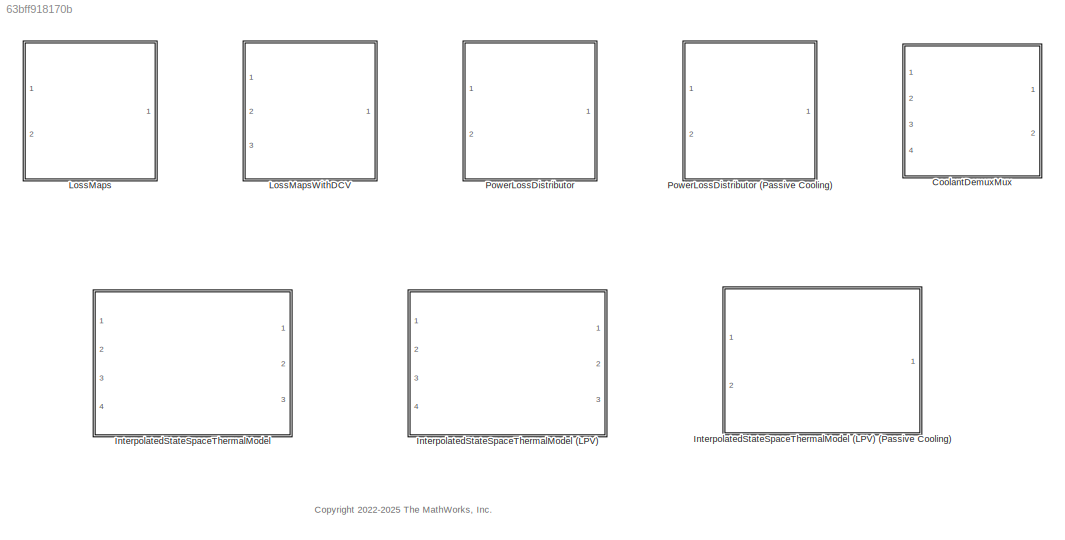
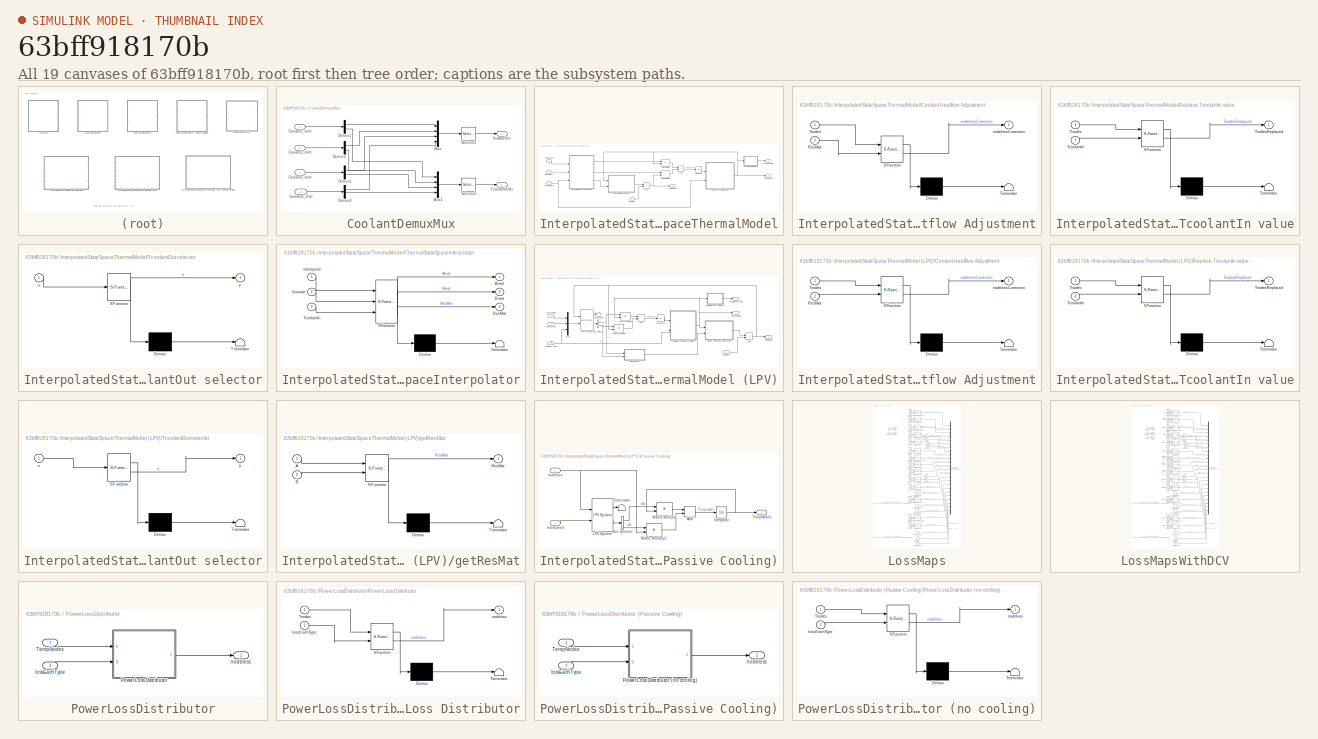
[diagram: thumbnail index - all 19 canvases of the model, root first then tree order]
MODEL slx_63bff918170b
KIND library
CONFIG AbsTol = auto
CONFIG EnableMultiTasking = off
CONFIG FixedStep = auto
CONFIG MaxStep = auto
CONFIG MinStep = auto
CONFIG RelTol = 1e-3
CONFIG SampleTimeConstraint = Unconstrained
CONFIG SolverName = VariableStepAuto
CONFIG StartTime = 0.0
CONFIG StopTime = 10.0
BLOCK [SubSystem] CoolantDemuxMux
  Ports = [4, 2]
  RequestExecContextInheritance = off
BLOCK [Inport] CoolantDemuxMux/Coolant1_Inlet
BLOCK [Inport] CoolantDemuxMux/Coolant2_Inlet
  Port = 2
BLOCK [Inport] CoolantDemuxMux/Coolant3_Inlet
  Port = 3
BLOCK [Inport] CoolantDemuxMux/Coolant4_Inlet
  Port = 4
BLOCK [Demux] CoolantDemuxMux/Demux1
  Outputs = 2
  Ports = [1, 2]
BLOCK [Demux] CoolantDemuxMux/Demux2
  Outputs = 2
  Ports = [1, 2]
BLOCK [Demux] CoolantDemuxMux/Demux3
  Outputs = 2
  Ports = [1, 2]
BLOCK [Demux] CoolantDemuxMux/Demux4
  Outputs = 2
  Ports = [1, 2]
BLOCK [Mux] CoolantDemuxMux/Mux
  DisplayOption = bar
  Ports = [4, 1]
BLOCK [Mux] CoolantDemuxMux/Mux1
  DisplayOption = bar
  Ports = [4, 1]
BLOCK [Selector] CoolantDemuxMux/Selector1
  IndexOptions = Index vector (dialog)
  Indices = [1,2,3,4]
  InputPortWidth = 4
  OutputSizes = 1
  Ports = [1, 1]
BLOCK [Selector] CoolantDemuxMux/Selector2
  IndexOptions = Index vector (dialog)
  Indices = [1,2,3,4]
  InputPortWidth = 4
  OutputSizes = 1
  Ports = [1, 1]
BLOCK [Outport] CoolantDemuxMux/TcoolantInVec
  Port = 2
BLOCK [Outport] CoolantDemuxMux/flowrateVec
BLOCK [SubSystem] InterpolatedStateSpaceThermalModel
  Ports = [4, 3]
  RequestExecContextInheritance = off
BLOCK [SubSystem] InterpolatedStateSpaceThermalModel (LPV)
  Ports = [4, 3]
  RequestExecContextInheritance = off
BLOCK [SubSystem] InterpolatedStateSpaceThermalModel (LPV) (Passive Cooling)
  Ports = [2, 1]
  RequestExecContextInheritance = off
BLOCK [Sum] InterpolatedStateSpaceThermalModel (LPV) (Passive Cooling)/Add
  IconShape = rectangular
  Ports = [2, 1]
BLOCK [BusSelector] InterpolatedStateSpaceThermalModel (LPV) (Passive Cooling)/Bus Selector
  OutputSignals = A,B
  Ports = [1, 2]
BLOCK [Integrator] InterpolatedStateSpaceThermalModel (LPV) (Passive Cooling)/Integrator
  InitialCondition = TnodesInit
  Ports = [1, 1]
BLOCK [Reference] InterpolatedStateSpaceThermalModel (LPV) (Passive Cooling)/LPV System  REF=cstblocks/Linear Parameter Varying/LPV System
  Ports = [2, 2]
  SourceBlock = cstblocks/Linear Parameter Varying/LPV System
  SourceProductBaseCode = CT
  SourceType = LPV Block
BLOCK [Product] InterpolatedStateSpaceThermalModel (LPV) (Passive Cooling)/Matrix Multiply
  Multiplication = Matrix(*)
  Ports = [2, 1]
BLOCK [Product] InterpolatedStateSpaceThermalModel (LPV) (Passive Cooling)/Matrix Multiply1
  Multiplication = Matrix(*)
  Ports = [2, 1]
BLOCK [Outport] InterpolatedStateSpaceThermalModel (LPV) (Passive Cooling)/TempNodes
BLOCK [Terminator] InterpolatedStateSpaceThermalModel (LPV) (Passive Cooling)/Terminator
BLOCK [Inport] InterpolatedStateSpaceThermalModel (LPV) (Passive Cooling)/nodeloss
BLOCK [Inport] InterpolatedStateSpaceThermalModel (LPV) (Passive Cooling)/rotorspeed
  Port = 2
BLOCK [Sum] InterpolatedStateSpaceThermalModel (LPV)/Add
  IconShape = rectangular
  Ports = [2, 1]
BLOCK [Sum] InterpolatedStateSpaceThermalModel (LPV)/Add1
  IconShape = rectangular
  Ports = [2, 1]
BLOCK [BusSelector] InterpolatedStateSpaceThermalModel (LPV)/Bus Selector
  OutputSignals = A,B
  Ports = [1, 2]
BLOCK [SubSystem] InterpolatedStateSpaceThermalModel (LPV)/Coolant Heatflow Adjustment
  ErrorFcn = Stateflow.Translate.translate
  PermitHierarchicalResolution = ExplicitOnly
  Ports = [2, 1]
  RequestExecContextInheritance = off
  SFBlockType = MATLAB Function
  TreatAsAtomicUnit = on
BLOCK [Demux] InterpolatedStateSpaceThermalModel (LPV)/Coolant Heatflow Adjustment/ Demux 
  Outputs = 1
  Ports = [1, 1]
BLOCK [S-Function] InterpolatedStateSpaceThermalModel (LPV)/Coolant Heatflow Adjustment/ SFunction 
  EnableBusSupport = off
  FunctionName = sf_sfun
  Parameters = CoolAdjMat,CoolantArrayIdxs,numStates
  PortCounts = [2 2]
  Ports = [2, 2]
  SFcnIsStateOwnerBlock = off
  SFunctionDeploymentMode = off
  Tag = Stateflow S-Function 5
BLOCK [Terminator] InterpolatedStateSpaceThermalModel (LPV)/Coolant Heatflow Adjustment/ Terminator 
BLOCK [Inport] InterpolatedStateSpaceThermalModel (LPV)/Coolant Heatflow Adjustment/ResMat
  Port = 2
BLOCK [Inport] InterpolatedStateSpaceThermalModel (LPV)/Coolant Heatflow Adjustment/Tnodes
BLOCK [Outport] InterpolatedStateSpaceThermalModel (LPV)/Coolant Heatflow Adjustment/nodelossCorrection
BLOCK [Integrator] InterpolatedStateSpaceThermalModel (LPV)/Integrator
  InitialCondition = TnodesInit
  Ports = [1, 1]
BLOCK [Reference] InterpolatedStateSpaceThermalModel (LPV)/LPV System  REF=cstblocks/Linear Parameter Varying/LPV System
  Ports = [2, 2]
  SourceBlock = cstblocks/Linear Parameter Varying/LPV System
  SourceProductBaseCode = CT
  SourceType = LPV Block
BLOCK [Product] InterpolatedStateSpaceThermalModel (LPV)/Matrix Multiply
  Multiplication = Matrix(*)
  Ports = [2, 1]
BLOCK [Product] InterpolatedStateSpaceThermalModel (LPV)/Matrix Multiply1
  Multiplication = Matrix(*)
  Ports = [2, 1]
BLOCK [Mux] InterpolatedStateSpaceThermalModel (LPV)/Mux
  DisplayOption = bar
  Inputs = 3
  Ports = [3, 1]
BLOCK [Outport] InterpolatedStateSpaceThermalModel (LPV)/PowNodes
  Port = 2
BLOCK [SubSystem] InterpolatedStateSpaceThermalModel (LPV)/Replace TcoolantIn value
  ErrorFcn = Stateflow.Translate.translate
  PermitHierarchicalResolution = ExplicitOnly
  Ports = [2, 1]
  RequestExecContextInheritance = off
  SFBlockType = MATLAB Function
  TreatAsAtomicUnit = on
BLOCK [Demux] InterpolatedStateSpaceThermalModel (LPV)/Replace TcoolantIn value/ Demux 
  Outputs = 1
  Ports = [1, 1]
BLOCK [S-Function] InterpolatedStateSpaceThermalModel (LPV)/Replace TcoolantIn value/ SFunction 
  EnableBusSupport = off
  FunctionName = sf_sfun
  Parameters = InletCoolantIdxs
  PortCounts = [2 2]
  Ports = [2, 2]
  SFcnIsStateOwnerBlock = off
  SFunctionDeploymentMode = off
  Tag = Stateflow S-Function 7
BLOCK [Terminator] InterpolatedStateSpaceThermalModel (LPV)/Replace TcoolantIn value/ Terminator 
BLOCK [Inport] InterpolatedStateSpaceThermalModel (LPV)/Replace TcoolantIn value/TcoolantIn
  Port = 2
BLOCK [Inport] InterpolatedStateSpaceThermalModel (LPV)/Replace TcoolantIn value/Tnodes
BLOCK [Outport] InterpolatedStateSpaceThermalModel (LPV)/Replace TcoolantIn value/TnodesReplaced
BLOCK [Inport] InterpolatedStateSpaceThermalModel (LPV)/TcoolantInVec
  Port = 4
BLOCK [SubSystem] InterpolatedStateSpaceThermalModel (LPV)/TcoolantOut selector
  ErrorFcn = Stateflow.Translate.translate
  PermitHierarchicalResolution = ExplicitOnly
  Ports = [1, 1]
  RequestExecContextInheritance = off
  SFBlockType = MATLAB Function
  TreatAsAtomicUnit = on
BLOCK [Demux] InterpolatedStateSpaceThermalModel (LPV)/TcoolantOut selector/ Demux 
  Outputs = 1
  Ports = [1, 1]
BLOCK [S-Function] InterpolatedStateSpaceThermalModel (LPV)/TcoolantOut selector/ SFunction 
  EnableBusSupport = off
  FunctionName = sf_sfun
  Parameters = OutletCoolantIdxs
  PortCounts = [1 2]
  Ports = [1, 2]
  SFcnIsStateOwnerBlock = off
  SFunctionDeploymentMode = off
  Tag = Stateflow S-Function 8
BLOCK [Terminator] InterpolatedStateSpaceThermalModel (LPV)/TcoolantOut selector/ Terminator 
BLOCK [Inport] InterpolatedStateSpaceThermalModel (LPV)/TcoolantOut selector/u
BLOCK [Outport] InterpolatedStateSpaceThermalModel (LPV)/TcoolantOut selector/y
BLOCK [Outport] InterpolatedStateSpaceThermalModel (LPV)/TcoolantOutVec
  Port = 3
BLOCK [Outport] InterpolatedStateSpaceThermalModel (LPV)/TempNodes
BLOCK [Terminator] InterpolatedStateSpaceThermalModel (LPV)/Terminator
BLOCK [Inport] InterpolatedStateSpaceThermalModel (LPV)/flowrateVec
  Port = 3
BLOCK [SubSystem] InterpolatedStateSpaceThermalModel (LPV)/getResMat
  ErrorFcn = Stateflow.Translate.translate
  PermitHierarchicalResolution = ExplicitOnly
  Ports = [2, 1]
  RequestExecContextInheritance = off
  SFBlockType = MATLAB Function
  TreatAsAtomicUnit = on
BLOCK [Demux] InterpolatedStateSpaceThermalModel (LPV)/getResMat/ Demux 
  Outputs = 1
  Ports = [1, 1]
BLOCK [S-Function] InterpolatedStateSpaceThermalModel (LPV)/getResMat/ SFunction 
  EnableBusSupport = off
  FunctionName = sf_sfun
  PortCounts = [2 2]
  Ports = [2, 2]
  SFcnIsStateOwnerBlock = off
  SFunctionDeploymentMode = off
  Tag = Stateflow S-Function 9
BLOCK [Terminator] InterpolatedStateSpaceThermalModel (LPV)/getResMat/ Terminator 
BLOCK [Inport] InterpolatedStateSpaceThermalModel (LPV)/getResMat/A
BLOCK [Inport] InterpolatedStateSpaceThermalModel (LPV)/getResMat/B
  Port = 2
BLOCK [Outport] InterpolatedStateSpaceThermalModel (LPV)/getResMat/ResMat
BLOCK [Inport] InterpolatedStateSpaceThermalModel (LPV)/nodeloss
BLOCK [Inport] InterpolatedStateSpaceThermalModel (LPV)/rotorspeed
  Port = 2
BLOCK [Sum] InterpolatedStateSpaceThermalModel/Add
  IconShape = rectangular
  Ports = [2, 1]
BLOCK [Sum] InterpolatedStateSpaceThermalModel/Add1
  IconShape = rectangular
  Ports = [2, 1]
BLOCK [SubSystem] InterpolatedStateSpaceThermalModel/Coolant Heatflow Adjustment
  ErrorFcn = Stateflow.Translate.translate
  PermitHierarchicalResolution = ExplicitOnly
  Ports = [2, 1]
  RequestExecContextInheritance = off
  SFBlockType = MATLAB Function
  TreatAsAtomicUnit = on
BLOCK [Demux] InterpolatedStateSpaceThermalModel/Coolant Heatflow Adjustment/ Demux 
  Outputs = 1
  Ports = [1, 1]
BLOCK [S-Function] InterpolatedStateSpaceThermalModel/Coolant Heatflow Adjustment/ SFunction 
  EnableBusSupport = on
  FunctionName = sf_sfun
  Parameters = CoolAdjMat,CoolantArrayIdxs,numStates
  PortCounts = [2 2]
  Ports = [2, 2]
  SFcnIsStateOwnerBlock = off
  SFunctionDeploymentMode = off
  Tag = Stateflow S-Function 1
BLOCK [Terminator] InterpolatedStateSpaceThermalModel/Coolant Heatflow Adjustment/ Terminator 
BLOCK [Inport] InterpolatedStateSpaceThermalModel/Coolant Heatflow Adjustment/ResMat
  Port = 2
BLOCK [Inport] InterpolatedStateSpaceThermalModel/Coolant Heatflow Adjustment/Tnodes
BLOCK [Outport] InterpolatedStateSpaceThermalModel/Coolant Heatflow Adjustment/nodelossCorrection
BLOCK [Integrator] InterpolatedStateSpaceThermalModel/Integrator
  InitialCondition = TnodesInit
  Ports = [1, 1]
BLOCK [Product] InterpolatedStateSpaceThermalModel/Matrix Multiply
  Multiplication = Matrix(*)
  Ports = [2, 1]
BLOCK [Product] InterpolatedStateSpaceThermalModel/Matrix Multiply1
  Multiplication = Matrix(*)
  Ports = [2, 1]
BLOCK [Outport] InterpolatedStateSpaceThermalModel/PowNodes
  Port = 2
BLOCK [SubSystem] InterpolatedStateSpaceThermalModel/Replace TcoolantIn value
  ErrorFcn = Stateflow.Translate.translate
  PermitHierarchicalResolution = ExplicitOnly
  Ports = [2, 1]
  RequestExecContextInheritance = off
  SFBlockType = MATLAB Function
  TreatAsAtomicUnit = on
BLOCK [Demux] InterpolatedStateSpaceThermalModel/Replace TcoolantIn value/ Demux 
  Outputs = 1
  Ports = [1, 1]
BLOCK [S-Function] InterpolatedStateSpaceThermalModel/Replace TcoolantIn value/ SFunction 
  EnableBusSupport = on
  FunctionName = sf_sfun
  Parameters = InletCoolantIdxs
  PortCounts = [2 2]
  Ports = [2, 2]
  SFcnIsStateOwnerBlock = off
  SFunctionDeploymentMode = off
  Tag = Stateflow S-Function 2
BLOCK [Terminator] InterpolatedStateSpaceThermalModel/Replace TcoolantIn value/ Terminator 
BLOCK [Inport] InterpolatedStateSpaceThermalModel/Replace TcoolantIn value/TcoolantIn
  Port = 2
BLOCK [Inport] InterpolatedStateSpaceThermalModel/Replace TcoolantIn value/Tnodes
BLOCK [Outport] InterpolatedStateSpaceThermalModel/Replace TcoolantIn value/TnodesReplaced
BLOCK [Inport] InterpolatedStateSpaceThermalModel/TcoolantInVec
  Port = 4
BLOCK [SubSystem] InterpolatedStateSpaceThermalModel/TcoolantOut selector
  ErrorFcn = Stateflow.Translate.translate
  PermitHierarchicalResolution = ExplicitOnly
  Ports = [1, 1]
  RequestExecContextInheritance = off
  SFBlockType = MATLAB Function
  TreatAsAtomicUnit = on
BLOCK [Demux] InterpolatedStateSpaceThermalModel/TcoolantOut selector/ Demux 
  Outputs = 1
  Ports = [1, 1]
BLOCK [S-Function] InterpolatedStateSpaceThermalModel/TcoolantOut selector/ SFunction 
  EnableBusSupport = on
  FunctionName = sf_sfun
  Parameters = OutletCoolantIdxs
  PortCounts = [1 2]
  Ports = [1, 2]
  SFcnIsStateOwnerBlock = off
  SFunctionDeploymentMode = off
  Tag = Stateflow S-Function 4
BLOCK [Terminator] InterpolatedStateSpaceThermalModel/TcoolantOut selector/ Terminator 
BLOCK [Inport] InterpolatedStateSpaceThermalModel/TcoolantOut selector/u
BLOCK [Outport] InterpolatedStateSpaceThermalModel/TcoolantOut selector/y
BLOCK [Outport] InterpolatedStateSpaceThermalModel/TcoolantOutVec
  Port = 3
BLOCK [Outport] InterpolatedStateSpaceThermalModel/TempNodes
BLOCK [SubSystem] InterpolatedStateSpaceThermalModel/ThermalStateSpaceInterpolator
  ErrorFcn = Stateflow.Translate.translate
  PermitHierarchicalResolution = ExplicitOnly
  Ports = [3, 3]
  RequestExecContextInheritance = off
  SFBlockType = MATLAB Function
  TreatAsAtomicUnit = on
BLOCK [Demux] InterpolatedStateSpaceThermalModel/ThermalStateSpaceInterpolator/ Demux 
  Outputs = 1
  Ports = [1, 1]
BLOCK [S-Function] InterpolatedStateSpaceThermalModel/ThermalStateSpaceInterpolator/ SFunction 
  EnableBusSupport = off
  FunctionName = sf_sfun
  Parameters = AMatND,BMatND,BkptsStruct,ResMatND,numStates
  PortCounts = [3 4]
  Ports = [3, 4]
  SFcnIsStateOwnerBlock = off
  SFunctionDeploymentMode = off
  Tag = Stateflow S-Function 3
BLOCK [Terminator] InterpolatedStateSpaceThermalModel/ThermalStateSpaceInterpolator/ Terminator 
BLOCK [Outport] InterpolatedStateSpaceThermalModel/ThermalStateSpaceInterpolator/Amat
BLOCK [Outport] InterpolatedStateSpaceThermalModel/ThermalStateSpaceInterpolator/Bmat
  Port = 2
BLOCK [Outport] InterpolatedStateSpaceThermalModel/ThermalStateSpaceInterpolator/ResMat
  Port = 3
BLOCK [Inport] InterpolatedStateSpaceThermalModel/ThermalStateSpaceInterpolator/TcoolantIn
  Port = 3
BLOCK [Inport] InterpolatedStateSpaceThermalModel/ThermalStateSpaceInterpolator/flowrate
  Port = 2
BLOCK [Inport] InterpolatedStateSpaceThermalModel/ThermalStateSpaceInterpolator/rotorspeed
BLOCK [Inport] InterpolatedStateSpaceThermalModel/flowrateVec
  Port = 3
BLOCK [Inport] InterpolatedStateSpaceThermalModel/nodeloss
BLOCK [Inport] InterpolatedStateSpaceThermalModel/rotorspeed
  Port = 2
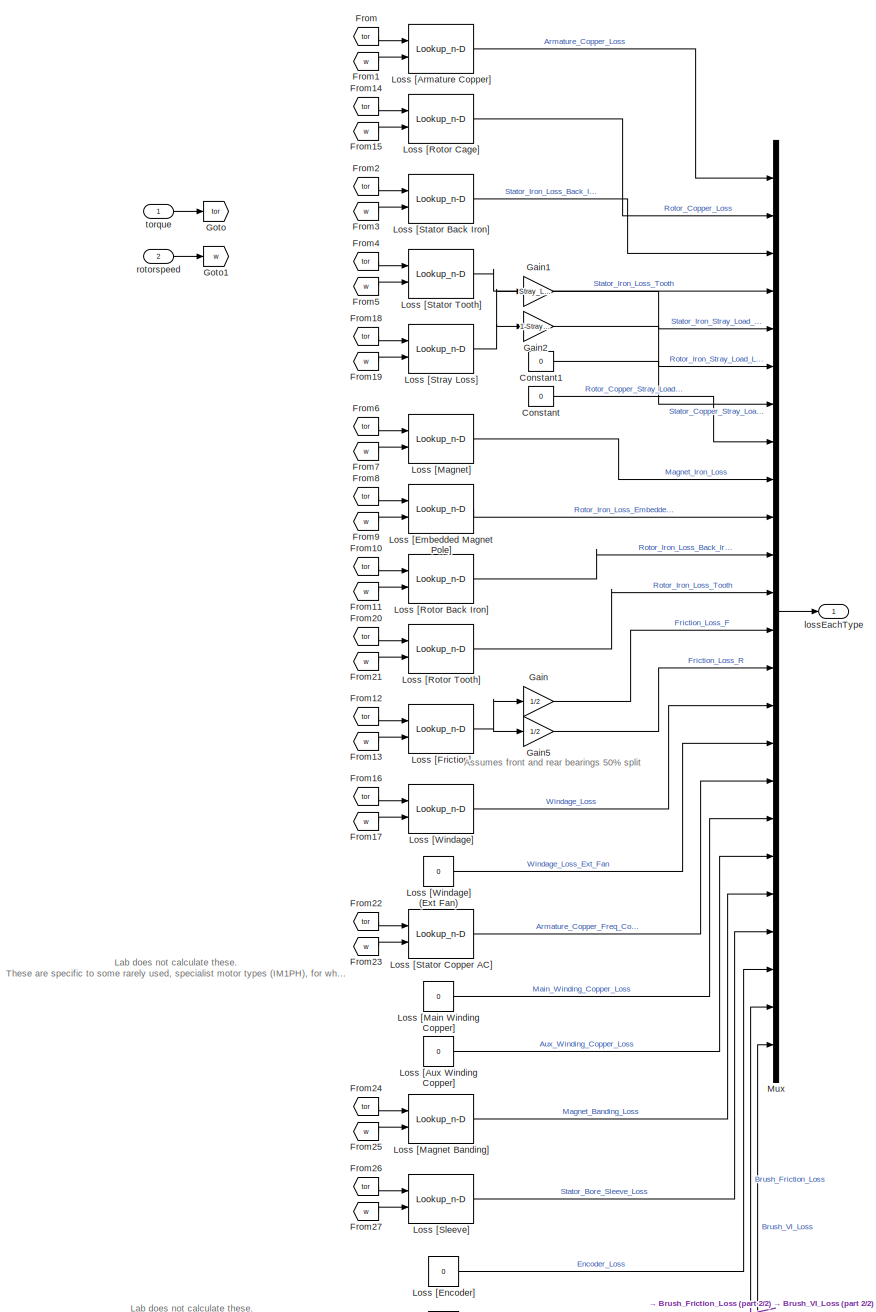
[diagram: LossMaps - part 1/2, most of the canvas]
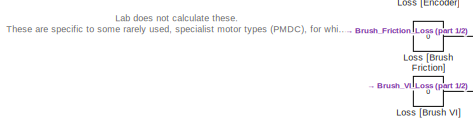
[diagram: LossMaps - part 2/2, bottom left region]
BLOCK [SubSystem] LossMaps
  Ports = [2, 1]
  RequestExecContextInheritance = off
BLOCK [Constant] LossMaps/Constant
  Value = 0
BLOCK [Constant] LossMaps/Constant1
  Value = 0
BLOCK [From] LossMaps/From
  GotoTag = tor
BLOCK [From] LossMaps/From1
  GotoTag = w
BLOCK [From] LossMaps/From10
  GotoTag = tor
BLOCK [From] LossMaps/From11
  GotoTag = w
BLOCK [From] LossMaps/From12
  GotoTag = tor
BLOCK [From] LossMaps/From13
  GotoTag = w
BLOCK [From] LossMaps/From14
  GotoTag = tor
BLOCK [From] LossMaps/From15
  GotoTag = w
BLOCK [From] LossMaps/From16
  GotoTag = tor
BLOCK [From] LossMaps/From17
  GotoTag = w
BLOCK [From] LossMaps/From18
  GotoTag = tor
BLOCK [From] LossMaps/From19
  GotoTag = w
BLOCK [From] LossMaps/From2
  GotoTag = tor
BLOCK [From] LossMaps/From20
  GotoTag = tor
BLOCK [From] LossMaps/From21
  GotoTag = w
BLOCK [From] LossMaps/From22
  GotoTag = tor
BLOCK [From] LossMaps/From23
  GotoTag = w
BLOCK [From] LossMaps/From24
  GotoTag = tor
BLOCK [From] LossMaps/From25
  GotoTag = w
BLOCK [From] LossMaps/From26
  GotoTag = tor
BLOCK [From] LossMaps/From27
  GotoTag = w
BLOCK [From] LossMaps/From3
  GotoTag = w
BLOCK [From] LossMaps/From4
  GotoTag = tor
BLOCK [From] LossMaps/From5
  GotoTag = w
BLOCK [From] LossMaps/From6
  GotoTag = tor
BLOCK [From] LossMaps/From7
  GotoTag = w
BLOCK [From] LossMaps/From8
  GotoTag = tor
BLOCK [From] LossMaps/From9
  GotoTag = w
BLOCK [Gain] LossMaps/Gain
  Gain = 1/2
BLOCK [Gain] LossMaps/Gain1
  Gain = Stray_Loss_Stator_Iron_Proportion
BLOCK [Gain] LossMaps/Gain2
  Gain = 1-Stray_Loss_Stator_Iron_Proportion
BLOCK [Gain] LossMaps/Gain5
  Gain = 1/2
BLOCK [Goto] LossMaps/Goto
  GotoTag = tor
BLOCK [Goto] LossMaps/Goto1
  GotoTag = w
BLOCK [Lookup_n-D] LossMaps/Loss [Armature Copper]
  BreakpointsForDimension1 = ShaftTorqueVec
  BreakpointsForDimension2 = SpeedVec
  ExtrapMethod = Clip
  InputPortMap = u0,u1
  InternalRulePriority = Speed
  Ports = [2, 1]
  RndMeth = Simplest
  Table = Stator_Copper_Loss_Mat
  UseLastTableValue = on
BLOCK [Constant] LossMaps/Loss [Aux Winding Copper]
  Value = 0
BLOCK [Constant] LossMaps/Loss [Brush Friction]
  Value = 0
BLOCK [Constant] LossMaps/Loss [Brush VI]
  Value = 0
BLOCK [Lookup_n-D] LossMaps/Loss [Embedded Magnet Pole]
  BreakpointsForDimension1 = ShaftTorqueVec
  BreakpointsForDimension2 = SpeedVec
  ExtrapMethod = Clip
  InputPortMap = u0,u1
  InternalRulePriority = Speed
  Ports = [2, 1]
  RndMeth = Simplest
  Table = Iron_Loss_Rotor_Pole_Mat
  UseLastTableValue = on
BLOCK [Constant] LossMaps/Loss [Encoder]
  Value = 0
BLOCK [Lookup_n-D] LossMaps/Loss [Friction]
  BreakpointsForDimension1 = ShaftTorqueVec
  BreakpointsForDimension2 = SpeedVec
  ExtrapMethod = Clip
  InputPortMap = u0,u1
  InternalRulePriority = Speed
  Ports = [2, 1]
  RndMeth = Simplest
  Table = Friction_Loss_Mat
  UseLastTableValue = on
BLOCK [Lookup_n-D] LossMaps/Loss [Magnet Banding]
  BreakpointsForDimension1 = ShaftTorqueVec
  BreakpointsForDimension2 = SpeedVec
  ExtrapMethod = Clip
  InputPortMap = u0,u1
  InternalRulePriority = Speed
  Ports = [2, 1]
  RndMeth = Simplest
  Table = Banding_Loss_Mat
  UseLastTableValue = on
BLOCK [Lookup_n-D] LossMaps/Loss [Magnet]
  BreakpointsForDimension1 = ShaftTorqueVec
  BreakpointsForDimension2 = SpeedVec
  ExtrapMethod = Clip
  InputPortMap = u0,u1
  InternalRulePriority = Speed
  Ports = [2, 1]
  RndMeth = Simplest
  Table = Magnet_Loss_Mat
  UseLastTableValue = on
BLOCK [Constant] LossMaps/Loss [Main Winding Copper]
  Value = 0
BLOCK [Lookup_n-D] LossMaps/Loss [Rotor Back Iron]
  BreakpointsForDimension1 = ShaftTorqueVec
  BreakpointsForDimension2 = SpeedVec
  ExtrapMethod = Clip
  InputPortMap = u0,u1
  InternalRulePriority = Speed
  Ports = [2, 1]
  RndMeth = Simplest
  Table = Iron_Loss_Rotor_Back_Iron_Mat
  UseLastTableValue = on
BLOCK [Lookup_n-D] LossMaps/Loss [Rotor Cage]
  BreakpointsForDimension1 = ShaftTorqueVec
  BreakpointsForDimension2 = SpeedVec
  ExtrapMethod = Clip
  InputPortMap = u0,u1
  InternalRulePriority = Speed
  Ports = [2, 1]
  RndMeth = Simplest
  Table = Rotor_Cage_Loss_Mat
  UseLastTableValue = on
BLOCK [Lookup_n-D] LossMaps/Loss [Rotor Tooth]
  BreakpointsForDimension1 = ShaftTorqueVec
  BreakpointsForDimension2 = SpeedVec
  ExtrapMethod = Clip
  InputPortMap = u0,u1
  InternalRulePriority = Speed
  Ports = [2, 1]
  RndMeth = Simplest
  Table = Iron_Loss_Rotor_Tooth_Mat
  UseLastTableValue = on
BLOCK [Lookup_n-D] LossMaps/Loss [Sleeve]
  BreakpointsForDimension1 = ShaftTorqueVec
  BreakpointsForDimension2 = SpeedVec
  ExtrapMethod = Clip
  InputPortMap = u0,u1
  InternalRulePriority = Speed
  Ports = [2, 1]
  RndMeth = Simplest
  Table = Sleeve_Loss_Mat
  UseLastTableValue = on
BLOCK [Lookup_n-D] LossMaps/Loss [Stator Back Iron]
  BreakpointsForDimension1 = ShaftTorqueVec
  BreakpointsForDimension2 = SpeedVec
  ExtrapMethod = Clip
  InputPortMap = u0,u1
  InternalRulePriority = Speed
  Ports = [2, 1]
  RndMeth = Simplest
  Table = Iron_Loss_Stator_Back_Iron_Mat
  UseLastTableValue = on
BLOCK [Lookup_n-D] LossMaps/Loss [Stator Copper AC]
  BreakpointsForDimension1 = ShaftTorqueVec
  BreakpointsForDimension2 = SpeedVec
  ExtrapMethod = Clip
  InputPortMap = u0,u1
  InternalRulePriority = Speed
  Ports = [2, 1]
  RndMeth = Simplest
  Table = Stator_Copper_Loss_AC_Mat
  UseLastTableValue = on
BLOCK [Lookup_n-D] LossMaps/Loss [Stator Tooth]
  BreakpointsForDimension1 = ShaftTorqueVec
  BreakpointsForDimension2 = SpeedVec
  ExtrapMethod = Clip
  InputPortMap = u0,u1
  InternalRulePriority = Speed
  Ports = [2, 1]
  RndMeth = Simplest
  Table = Iron_Loss_Stator_Tooth_Mat
  UseLastTableValue = on
BLOCK [Lookup_n-D] LossMaps/Loss [Stray Loss]
  BreakpointsForDimension1 = ShaftTorqueVec
  BreakpointsForDimension2 = SpeedVec
  ExtrapMethod = Clip
  InputPortMap = u0,u1
  InternalRulePriority = Speed
  Ports = [2, 1]
  RndMeth = Simplest
  Table = Stray_Load_Loss_Mat
  UseLastTableValue = on
BLOCK [Lookup_n-D] LossMaps/Loss [Windage]
  BreakpointsForDimension1 = ShaftTorqueVec
  BreakpointsForDimension2 = SpeedVec
  ExtrapMethod = Clip
  InputPortMap = u0,u1
  InternalRulePriority = Speed
  Ports = [2, 1]
  RndMeth = Simplest
  Table = Windage_Loss_Mat
  UseLastTableValue = on
BLOCK [Constant] LossMaps/Loss [Windage] (Ext Fan)
  Value = 0
BLOCK [Mux] LossMaps/Mux
  DisplayOption = bar
  Inputs = 24
  Ports = [24, 1]
BLOCK [Outport] LossMaps/lossEachType
BLOCK [Inport] LossMaps/rotorspeed
  Port = 2
BLOCK [Inport] LossMaps/torque
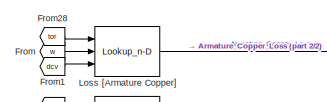
[diagram: LossMapsWithDCV - part 1/2, top center region]
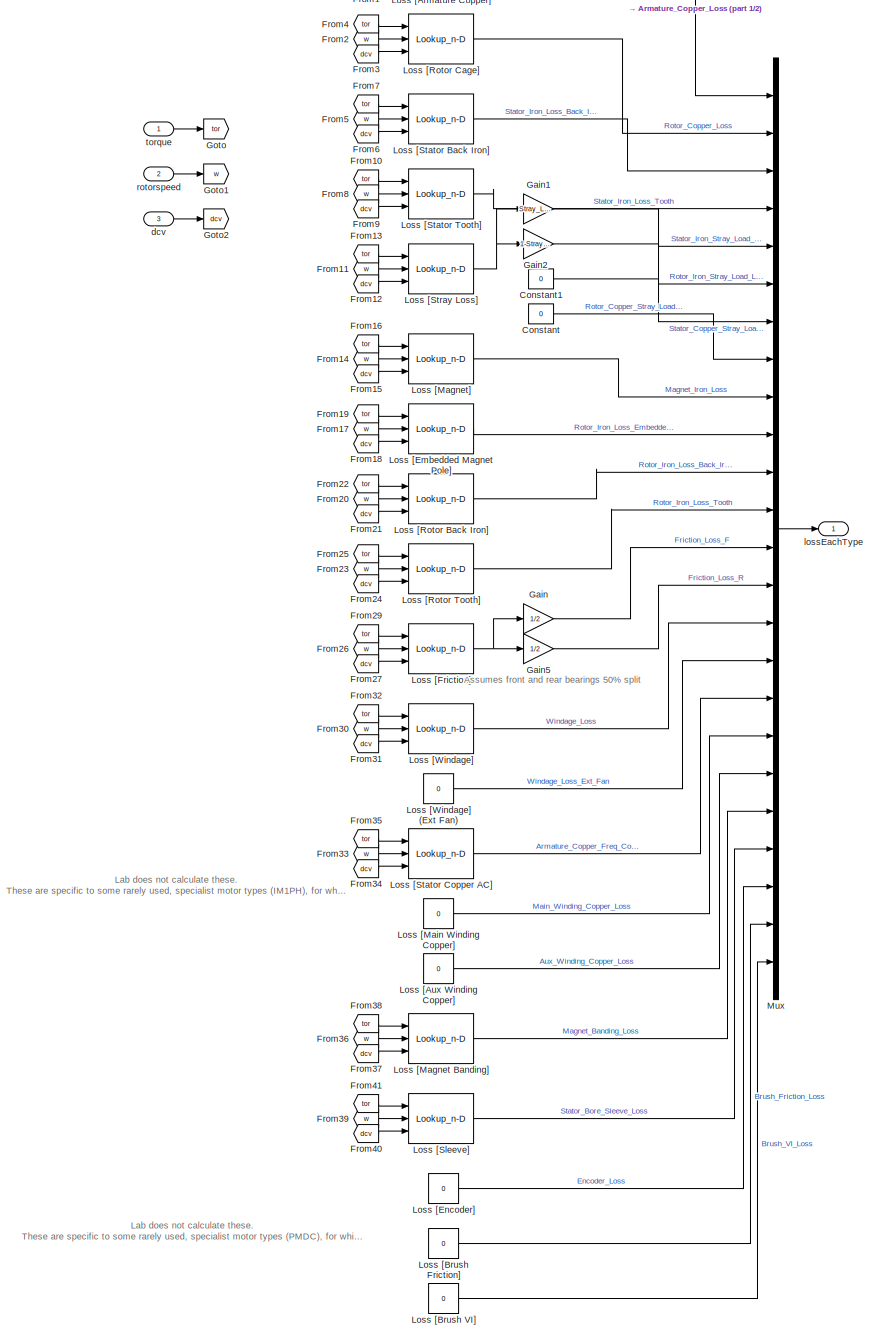
[diagram: LossMapsWithDCV - part 2/2, most of the canvas]
BLOCK [SubSystem] LossMapsWithDCV
  Ports = [3, 1]
  RequestExecContextInheritance = off
BLOCK [Constant] LossMapsWithDCV/Constant
  Value = 0
BLOCK [Constant] LossMapsWithDCV/Constant1
  Value = 0
BLOCK [From] LossMapsWithDCV/From
  GotoTag = w
BLOCK [From] LossMapsWithDCV/From1
  GotoTag = dcv
BLOCK [From] LossMapsWithDCV/From10
  GotoTag = tor
BLOCK [From] LossMapsWithDCV/From11
  GotoTag = w
BLOCK [From] LossMapsWithDCV/From12
  GotoTag = dcv
BLOCK [From] LossMapsWithDCV/From13
  GotoTag = tor
BLOCK [From] LossMapsWithDCV/From14
  GotoTag = w
BLOCK [From] LossMapsWithDCV/From15
  GotoTag = dcv
BLOCK [From] LossMapsWithDCV/From16
  GotoTag = tor
BLOCK [From] LossMapsWithDCV/From17
  GotoTag = w
BLOCK [From] LossMapsWithDCV/From18
  GotoTag = dcv
BLOCK [From] LossMapsWithDCV/From19
  GotoTag = tor
BLOCK [From] LossMapsWithDCV/From2
  GotoTag = w
BLOCK [From] LossMapsWithDCV/From20
  GotoTag = w
BLOCK [From] LossMapsWithDCV/From21
  GotoTag = dcv
BLOCK [From] LossMapsWithDCV/From22
  GotoTag = tor
BLOCK [From] LossMapsWithDCV/From23
  GotoTag = w
BLOCK [From] LossMapsWithDCV/From24
  GotoTag = dcv
BLOCK [From] LossMapsWithDCV/From25
  GotoTag = tor
BLOCK [From] LossMapsWithDCV/From26
  GotoTag = w
BLOCK [From] LossMapsWithDCV/From27
  GotoTag = dcv
BLOCK [From] LossMapsWithDCV/From28
  GotoTag = tor
BLOCK [From] LossMapsWithDCV/From29
  GotoTag = tor
BLOCK [From] LossMapsWithDCV/From3
  GotoTag = dcv
BLOCK [From] LossMapsWithDCV/From30
  GotoTag = w
BLOCK [From] LossMapsWithDCV/From31
  GotoTag = dcv
BLOCK [From] LossMapsWithDCV/From32
  GotoTag = tor
BLOCK [From] LossMapsWithDCV/From33
  GotoTag = w
BLOCK [From] LossMapsWithDCV/From34
  GotoTag = dcv
BLOCK [From] LossMapsWithDCV/From35
  GotoTag = tor
BLOCK [From] LossMapsWithDCV/From36
  GotoTag = w
BLOCK [From] LossMapsWithDCV/From37
  GotoTag = dcv
BLOCK [From] LossMapsWithDCV/From38
  GotoTag = tor
BLOCK [From] LossMapsWithDCV/From39
  GotoTag = w
BLOCK [From] LossMapsWithDCV/From4
  GotoTag = tor
BLOCK [From] LossMapsWithDCV/From40
  GotoTag = dcv
BLOCK [From] LossMapsWithDCV/From41
  GotoTag = tor
BLOCK [From] LossMapsWithDCV/From5
  GotoTag = w
BLOCK [From] LossMapsWithDCV/From6
  GotoTag = dcv
BLOCK [From] LossMapsWithDCV/From7
  GotoTag = tor
BLOCK [From] LossMapsWithDCV/From8
  GotoTag = w
BLOCK [From] LossMapsWithDCV/From9
  GotoTag = dcv
BLOCK [Gain] LossMapsWithDCV/Gain
  Gain = 1/2
BLOCK [Gain] LossMapsWithDCV/Gain1
  Gain = Stray_Loss_Stator_Iron_Proportion
BLOCK [Gain] LossMapsWithDCV/Gain2
  Gain = 1-Stray_Loss_Stator_Iron_Proportion
BLOCK [Gain] LossMapsWithDCV/Gain5
  Gain = 1/2
BLOCK [Goto] LossMapsWithDCV/Goto
  GotoTag = tor
BLOCK [Goto] LossMapsWithDCV/Goto1
  GotoTag = w
BLOCK [Goto] LossMapsWithDCV/Goto2
  GotoTag = dcv
BLOCK [Lookup_n-D] LossMapsWithDCV/Loss [Armature Copper]
  BreakpointsForDimension1 = ShaftTorqueVec
  BreakpointsForDimension2 = SpeedVec
  BreakpointsForDimension3 = DCBusVoltageVec
  ExtrapMethod = Clip
  InputPortMap = u0,u1,u2
  InternalRulePriority = Speed
  NumberOfTableDimensions = 3
  Ports = [3, 1]
  RndMeth = Simplest
  Table = Stator_Copper_Loss_Mat
  UseLastTableValue = on
BLOCK [Constant] LossMapsWithDCV/Loss [Aux Winding Copper]
  Value = 0
BLOCK [Constant] LossMapsWithDCV/Loss [Brush Friction]
  Value = 0
BLOCK [Constant] LossMapsWithDCV/Loss [Brush VI]
  Value = 0
BLOCK [Lookup_n-D] LossMapsWithDCV/Loss [Embedded Magnet Pole]
  BreakpointsForDimension1 = ShaftTorqueVec
  BreakpointsForDimension2 = SpeedVec
  BreakpointsForDimension3 = DCBusVoltageVec
  ExtrapMethod = Clip
  InputPortMap = u0,u1,u2
  InternalRulePriority = Speed
  NumberOfTableDimensions = 3
  Ports = [3, 1]
  RndMeth = Simplest
  Table = Iron_Loss_Rotor_Pole_Mat
  UseLastTableValue = on
BLOCK [Constant] LossMapsWithDCV/Loss [Encoder]
  Value = 0
BLOCK [Lookup_n-D] LossMapsWithDCV/Loss [Friction]
  BreakpointsForDimension1 = ShaftTorqueVec
  BreakpointsForDimension2 = SpeedVec
  BreakpointsForDimension3 = DCBusVoltageVec
  ExtrapMethod = Clip
  InputPortMap = u0,u1,u2
  InternalRulePriority = Speed
  NumberOfTableDimensions = 3
  Ports = [3, 1]
  RndMeth = Simplest
  Table = Friction_Loss_Mat
  UseLastTableValue = on
BLOCK [Lookup_n-D] LossMapsWithDCV/Loss [Magnet Banding]
  BreakpointsForDimension1 = ShaftTorqueVec
  BreakpointsForDimension2 = SpeedVec
  BreakpointsForDimension3 = DCBusVoltageVec
  ExtrapMethod = Clip
  InputPortMap = u0,u1,u2
  InternalRulePriority = Speed
  NumberOfTableDimensions = 3
  Ports = [3, 1]
  RndMeth = Simplest
  Table = Banding_Loss_Mat
  UseLastTableValue = on
BLOCK [Lookup_n-D] LossMapsWithDCV/Loss [Magnet]
  BreakpointsForDimension1 = ShaftTorqueVec
  BreakpointsForDimension2 = SpeedVec
  BreakpointsForDimension3 = DCBusVoltageVec
  ExtrapMethod = Clip
  InputPortMap = u0,u1,u2
  InternalRulePriority = Speed
  NumberOfTableDimensions = 3
  Ports = [3, 1]
  RndMeth = Simplest
  Table = Magnet_Loss_Mat
  UseLastTableValue = on
BLOCK [Constant] LossMapsWithDCV/Loss [Main Winding Copper]
  Value = 0
BLOCK [Lookup_n-D] LossMapsWithDCV/Loss [Rotor Back Iron]
  BreakpointsForDimension1 = ShaftTorqueVec
  BreakpointsForDimension2 = SpeedVec
  BreakpointsForDimension3 = DCBusVoltageVec
  ExtrapMethod = Clip
  InputPortMap = u0,u1,u2
  InternalRulePriority = Speed
  NumberOfTableDimensions = 3
  Ports = [3, 1]
  RndMeth = Simplest
  Table = Iron_Loss_Rotor_Back_Iron_Mat
  UseLastTableValue = on
BLOCK [Lookup_n-D] LossMapsWithDCV/Loss [Rotor Cage]
  BreakpointsForDimension1 = ShaftTorqueVec
  BreakpointsForDimension2 = SpeedVec
  BreakpointsForDimension3 = DCBusVoltageVec
  ExtrapMethod = Clip
  InputPortMap = u0,u1,u2
  InternalRulePriority = Speed
  NumberOfTableDimensions = 3
  Ports = [3, 1]
  RndMeth = Simplest
  Table = Rotor_Cage_Loss_Mat
  UseLastTableValue = on
BLOCK [Lookup_n-D] LossMapsWithDCV/Loss [Rotor Tooth]
  BreakpointsForDimension1 = ShaftTorqueVec
  BreakpointsForDimension2 = SpeedVec
  BreakpointsForDimension3 = DCBusVoltageVec
  ExtrapMethod = Clip
  InputPortMap = u0,u1,u2
  InternalRulePriority = Speed
  NumberOfTableDimensions = 3
  Ports = [3, 1]
  RndMeth = Simplest
  Table = Iron_Loss_Rotor_Tooth_Mat
  UseLastTableValue = on
BLOCK [Lookup_n-D] LossMapsWithDCV/Loss [Sleeve]
  BreakpointsForDimension1 = ShaftTorqueVec
  BreakpointsForDimension2 = SpeedVec
  BreakpointsForDimension3 = DCBusVoltageVec
  ExtrapMethod = Clip
  InputPortMap = u0,u1,u2
  InternalRulePriority = Speed
  NumberOfTableDimensions = 3
  Ports = [3, 1]
  RndMeth = Simplest
  Table = Sleeve_Loss_Mat
  UseLastTableValue = on
BLOCK [Lookup_n-D] LossMapsWithDCV/Loss [Stator Back Iron]
  BreakpointsForDimension1 = ShaftTorqueVec
  BreakpointsForDimension2 = SpeedVec
  BreakpointsForDimension3 = DCBusVoltageVec
  ExtrapMethod = Clip
  InputPortMap = u0,u1,u2
  InternalRulePriority = Speed
  NumberOfTableDimensions = 3
  Ports = [3, 1]
  RndMeth = Simplest
  Table = Iron_Loss_Stator_Back_Iron_Mat
  UseLastTableValue = on
BLOCK [Lookup_n-D] LossMapsWithDCV/Loss [Stator Copper AC]
  BreakpointsForDimension1 = ShaftTorqueVec
  BreakpointsForDimension2 = SpeedVec
  BreakpointsForDimension3 = DCBusVoltageVec
  ExtrapMethod = Clip
  InputPortMap = u0,u1,u2
  InternalRulePriority = Speed
  NumberOfTableDimensions = 3
  Ports = [3, 1]
  RndMeth = Simplest
  Table = Stator_Copper_Loss_AC_Mat
  UseLastTableValue = on
BLOCK [Lookup_n-D] LossMapsWithDCV/Loss [Stator Tooth]
  BreakpointsForDimension1 = ShaftTorqueVec
  BreakpointsForDimension2 = SpeedVec
  BreakpointsForDimension3 = DCBusVoltageVec
  ExtrapMethod = Clip
  InputPortMap = u0,u1,u2
  InternalRulePriority = Speed
  NumberOfTableDimensions = 3
  Ports = [3, 1]
  RndMeth = Simplest
  Table = Iron_Loss_Stator_Tooth_Mat
  UseLastTableValue = on
BLOCK [Lookup_n-D] LossMapsWithDCV/Loss [Stray Loss]
  BreakpointsForDimension1 = ShaftTorqueVec
  BreakpointsForDimension2 = SpeedVec
  BreakpointsForDimension3 = DCBusVoltageVec
  ExtrapMethod = Clip
  InputPortMap = u0,u1,u2
  InternalRulePriority = Speed
  NumberOfTableDimensions = 3
  Ports = [3, 1]
  RndMeth = Simplest
  Table = Stray_Load_Loss_Mat
  UseLastTableValue = on
BLOCK [Lookup_n-D] LossMapsWithDCV/Loss [Windage]
  BreakpointsForDimension1 = ShaftTorqueVec
  BreakpointsForDimension2 = SpeedVec
  BreakpointsForDimension3 = DCBusVoltageVec
  ExtrapMethod = Clip
  InputPortMap = u0,u1,u2
  InternalRulePriority = Speed
  NumberOfTableDimensions = 3
  Ports = [3, 1]
  RndMeth = Simplest
  Table = Windage_Loss_Mat
  UseLastTableValue = on
BLOCK [Constant] LossMapsWithDCV/Loss [Windage] (Ext Fan)
  Value = 0
BLOCK [Mux] LossMapsWithDCV/Mux
  DisplayOption = bar
  Inputs = 24
  Ports = [24, 1]
BLOCK [Inport] LossMapsWithDCV/dcv
  Port = 3
BLOCK [Outport] LossMapsWithDCV/lossEachType
BLOCK [Inport] LossMapsWithDCV/rotorspeed
  Port = 2
BLOCK [Inport] LossMapsWithDCV/torque
BLOCK [SubSystem] PowerLossDistributor
  Ports = [2, 1]
  RequestExecContextInheritance = off
BLOCK [SubSystem] PowerLossDistributor (Passive Cooling)
  Ports = [2, 1]
  RequestExecContextInheritance = off
BLOCK [SubSystem] PowerLossDistributor (Passive Cooling)/PowerLoss Distributor (no cooling)
  ErrorFcn = Stateflow.Translate.translate
  PermitHierarchicalResolution = ExplicitOnly
  Ports = [2, 1]
  RequestExecContextInheritance = off
  SFBlockType = MATLAB Function
  TreatAsAtomicUnit = on
BLOCK [Demux] PowerLossDistributor (Passive Cooling)/PowerLoss Distributor (no cooling)/ Demux 
  Outputs = 1
  Ports = [1, 1]
BLOCK [S-Function] PowerLossDistributor (Passive Cooling)/PowerLoss Distributor (no cooling)/ SFunction 
  EnableBusSupport = off
  FunctionName = sf_sfun
  Parameters = CapMat,LossDistrForEachType,RotorCopperTempCoefResistivity,StatorCopperTempCoefResistivity,TrefRotor,TrefStator,numStates
  PortCounts = [2 2]
  Ports = [2, 2]
  SFcnIsStateOwnerBlock = off
  SFunctionDeploymentMode = off
  Tag = Stateflow S-Function 10
BLOCK [Terminator] PowerLossDistributor (Passive Cooling)/PowerLoss Distributor (no cooling)/ Terminator 
BLOCK [Inport] PowerLossDistributor (Passive Cooling)/PowerLoss Distributor (no cooling)/Tnodes
BLOCK [Inport] PowerLossDistributor (Passive Cooling)/PowerLoss Distributor (no cooling)/lossEachType
  Port = 2
BLOCK [Outport] PowerLossDistributor (Passive Cooling)/PowerLoss Distributor (no cooling)/nodeloss
BLOCK [Inport] PowerLossDistributor (Passive Cooling)/TempNodes
BLOCK [Inport] PowerLossDistributor (Passive Cooling)/lossEachType
  Port = 2
BLOCK [Outport] PowerLossDistributor (Passive Cooling)/nodeloss
BLOCK [SubSystem] PowerLossDistributor/PowerLoss Distributor
  ErrorFcn = Stateflow.Translate.translate
  PermitHierarchicalResolution = ExplicitOnly
  Ports = [2, 1]
  RequestExecContextInheritance = off
  SFBlockType = MATLAB Function
  TreatAsAtomicUnit = on
BLOCK [Demux] PowerLossDistributor/PowerLoss Distributor/ Demux 
  Outputs = 1
  Ports = [1, 1]
BLOCK [S-Function] PowerLossDistributor/PowerLoss Distributor/ SFunction 
  EnableBusSupport = on
  FunctionName = sf_sfun
  Parameters = CapMat,CoolantArrayIdxs,LossDistrForEachType,RotorCopperTempCoefResistivity,StatorCopperTempCoefResistivity,TrefRotor,TrefStator,numStates
  PortCounts = [2 2]
  Ports = [2, 2]
  SFcnIsStateOwnerBlock = off
  SFunctionDeploymentMode = off
  Tag = Stateflow S-Function 6
BLOCK [Terminator] PowerLossDistributor/PowerLoss Distributor/ Terminator 
BLOCK [Inport] PowerLossDistributor/PowerLoss Distributor/Tnodes
BLOCK [Inport] PowerLossDistributor/PowerLoss Distributor/lossEachType
  Port = 2
BLOCK [Outport] PowerLossDistributor/PowerLoss Distributor/nodeloss
BLOCK [Inport] PowerLossDistributor/TempNodes
BLOCK [Inport] PowerLossDistributor/lossEachType
  Port = 2
BLOCK [Outport] PowerLossDistributor/nodeloss
ANNOTATION (root): <copyright redacted>
ANNOTATION LossMaps: Assumes front and rear bearings 50% split
ANNOTATION LossMaps: Lab does not calculate these. These are specific to some rarely used, specialist motor types (IM1PH), for which the Lab loss export is not supported.
ANNOTATION LossMaps: Lab does not calculate these. These are specific to some rarely used, specialist motor types (PMDC), for which the Lab loss export is not supported.
ANNOTATION LossMapsWithDCV: Assumes front and rear bearings 50% split
ANNOTATION LossMapsWithDCV: Lab does not calculate these. These are specific to some rarely used, specialist motor types (IM1PH), for which the Lab loss export is not supported.
ANNOTATION LossMapsWithDCV: Lab does not calculate these. These are specific to some rarely used, specialist motor types (PMDC), for which the Lab loss export is not supported.
LINE InterpolatedStateSpaceThermalModel (LPV) (Passive Cooling)/Add:1 -> InterpolatedStateSpaceThermalModel (LPV) (Passive Cooling)/Integrator:1
LINE InterpolatedStateSpaceThermalModel (LPV) (Passive Cooling)/Bus Selector:1 -> InterpolatedStateSpaceThermalModel (LPV) (Passive Cooling)/Matrix Multiply:1
LINE InterpolatedStateSpaceThermalModel (LPV) (Passive Cooling)/Bus Selector:2 -> InterpolatedStateSpaceThermalModel (LPV) (Passive Cooling)/Matrix Multiply1:1
NET InterpolatedStateSpaceThermalModel (LPV) (Passive Cooling)/Integrator:1 -> InterpolatedStateSpaceThermalModel (LPV) (Passive Cooling)/Matrix Multiply:2, InterpolatedStateSpaceThermalModel (LPV) (Passive Cooling)/TempNodes:1
LINE InterpolatedStateSpaceThermalModel (LPV) (Passive Cooling)/LPV System:1 -> InterpolatedStateSpaceThermalModel (LPV) (Passive Cooling)/Terminator:1
LINE InterpolatedStateSpaceThermalModel (LPV) (Passive Cooling)/LPV System:2 -> InterpolatedStateSpaceThermalModel (LPV) (Passive Cooling)/Bus Selector:1
LINE InterpolatedStateSpaceThermalModel (LPV) (Passive Cooling)/Matrix Multiply1:1 -> InterpolatedStateSpaceThermalModel (LPV) (Passive Cooling)/Add:2
LINE InterpolatedStateSpaceThermalModel (LPV) (Passive Cooling)/Matrix Multiply:1 -> InterpolatedStateSpaceThermalModel (LPV) (Passive Cooling)/Add:1
NET InterpolatedStateSpaceThermalModel (LPV) (Passive Cooling)/nodeloss:1 -> InterpolatedStateSpaceThermalModel (LPV) (Passive Cooling)/LPV System:1, InterpolatedStateSpaceThermalModel (LPV) (Passive Cooling)/Matrix Multiply1:2
LINE InterpolatedStateSpaceThermalModel (LPV) (Passive Cooling)/rotorspeed:1 -> InterpolatedStateSpaceThermalModel (LPV) (Passive Cooling)/LPV System:2
NET InterpolatedStateSpaceThermalModel (LPV)/Add1:1 -> InterpolatedStateSpaceThermalModel (LPV)/LPV System:1, InterpolatedStateSpaceThermalModel (LPV)/Matrix Multiply1:2, InterpolatedStateSpaceThermalModel (LPV)/PowNodes:1
LINE InterpolatedStateSpaceThermalModel (LPV)/Add:1 -> InterpolatedStateSpaceThermalModel (LPV)/Integrator:1
NET InterpolatedStateSpaceThermalModel (LPV)/Bus Selector:1 -> InterpolatedStateSpaceThermalModel (LPV)/Matrix Multiply:1, InterpolatedStateSpaceThermalModel (LPV)/getResMat:1
NET InterpolatedStateSpaceThermalModel (LPV)/Bus Selector:2 -> InterpolatedStateSpaceThermalModel (LPV)/Matrix Multiply1:1, InterpolatedStateSpaceThermalModel (LPV)/getResMat:2
LINE InterpolatedStateSpaceThermalModel (LPV)/Coolant Heatflow Adjustment:1 -> InterpolatedStateSpaceThermalModel (LPV)/Add1:1
LINE InterpolatedStateSpaceThermalModel (LPV)/Integrator:1 -> InterpolatedStateSpaceThermalModel (LPV)/Replace TcoolantIn value:1
LINE InterpolatedStateSpaceThermalModel (LPV)/LPV System:1 -> InterpolatedStateSpaceThermalModel (LPV)/Terminator:1
LINE InterpolatedStateSpaceThermalModel (LPV)/LPV System:2 -> InterpolatedStateSpaceThermalModel (LPV)/Bus Selector:1
LINE InterpolatedStateSpaceThermalModel (LPV)/Matrix Multiply1:1 -> InterpolatedStateSpaceThermalModel (LPV)/Add:2
LINE InterpolatedStateSpaceThermalModel (LPV)/Matrix Multiply:1 -> InterpolatedStateSpaceThermalModel (LPV)/Add:1
LINE InterpolatedStateSpaceThermalModel (LPV)/Mux:1 -> InterpolatedStateSpaceThermalModel (LPV)/LPV System:2
NET InterpolatedStateSpaceThermalModel (LPV)/Replace TcoolantIn value:1 -> InterpolatedStateSpaceThermalModel (LPV)/Coolant Heatflow Adjustment:1, InterpolatedStateSpaceThermalModel (LPV)/Matrix Multiply:2, InterpolatedStateSpaceThermalModel (LPV)/TcoolantOut selector:1, InterpolatedStateSpaceThermalModel (LPV)/TempNodes:1
NET InterpolatedStateSpaceThermalModel (LPV)/TcoolantInVec:1 -> InterpolatedStateSpaceThermalModel (LPV)/Mux:3, InterpolatedStateSpaceThermalModel (LPV)/Replace TcoolantIn value:2
LINE InterpolatedStateSpaceThermalModel (LPV)/TcoolantOut selector:1 -> InterpolatedStateSpaceThermalModel (LPV)/TcoolantOutVec:1
LINE InterpolatedStateSpaceThermalModel (LPV)/flowrateVec:1 -> InterpolatedStateSpaceThermalModel (LPV)/Mux:2
LINE InterpolatedStateSpaceThermalModel (LPV)/getResMat:1 -> InterpolatedStateSpaceThermalModel (LPV)/Coolant Heatflow Adjustment:2
LINE InterpolatedStateSpaceThermalModel (LPV)/nodeloss:1 -> InterpolatedStateSpaceThermalModel (LPV)/Add1:2
LINE InterpolatedStateSpaceThermalModel (LPV)/rotorspeed:1 -> InterpolatedStateSpaceThermalModel (LPV)/Mux:1
NET InterpolatedStateSpaceThermalModel/Add1:1 -> InterpolatedStateSpaceThermalModel/Matrix Multiply1:2, InterpolatedStateSpaceThermalModel/PowNodes:1
LINE InterpolatedStateSpaceThermalModel/Add:1 -> InterpolatedStateSpaceThermalModel/Integrator:1
LINE InterpolatedStateSpaceThermalModel/Coolant Heatflow Adjustment:1 -> InterpolatedStateSpaceThermalModel/Add1:1
LINE InterpolatedStateSpaceThermalModel/Integrator:1 -> InterpolatedStateSpaceThermalModel/Replace TcoolantIn value:1
LINE InterpolatedStateSpaceThermalModel/Matrix Multiply1:1 -> InterpolatedStateSpaceThermalModel/Add:2
LINE InterpolatedStateSpaceThermalModel/Matrix Multiply:1 -> InterpolatedStateSpaceThermalModel/Add:1
NET InterpolatedStateSpaceThermalModel/Replace TcoolantIn value:1 -> InterpolatedStateSpaceThermalModel/Coolant Heatflow Adjustment:1, InterpolatedStateSpaceThermalModel/Matrix Multiply:2, InterpolatedStateSpaceThermalModel/TcoolantOut selector:1, InterpolatedStateSpaceThermalModel/TempNodes:1
NET InterpolatedStateSpaceThermalModel/TcoolantInVec:1 -> InterpolatedStateSpaceThermalModel/Replace TcoolantIn value:2, InterpolatedStateSpaceThermalModel/ThermalStateSpaceInterpolator:3
LINE InterpolatedStateSpaceThermalModel/TcoolantOut selector:1 -> InterpolatedStateSpaceThermalModel/TcoolantOutVec:1
LINE InterpolatedStateSpaceThermalModel/ThermalStateSpaceInterpolator:1 -> InterpolatedStateSpaceThermalModel/Matrix Multiply:1
LINE InterpolatedStateSpaceThermalModel/ThermalStateSpaceInterpolator:2 -> InterpolatedStateSpaceThermalModel/Matrix Multiply1:1
LINE InterpolatedStateSpaceThermalModel/ThermalStateSpaceInterpolator:3 -> InterpolatedStateSpaceThermalModel/Coolant Heatflow Adjustment:2
LINE InterpolatedStateSpaceThermalModel/flowrateVec:1 -> InterpolatedStateSpaceThermalModel/ThermalStateSpaceInterpolator:2
LINE InterpolatedStateSpaceThermalModel/nodeloss:1 -> InterpolatedStateSpaceThermalModel/Add1:2
LINE InterpolatedStateSpaceThermalModel/rotorspeed:1 -> InterpolatedStateSpaceThermalModel/ThermalStateSpaceInterpolator:1
LINE LossMaps/Constant1:1 -> LossMaps/Mux:7
LINE LossMaps/Constant:1 -> LossMaps/Mux:8
LINE LossMaps/From10:1 -> LossMaps/Loss [Rotor Back Iron]:1
LINE LossMaps/From11:1 -> LossMaps/Loss [Rotor Back Iron]:2
LINE LossMaps/From12:1 -> LossMaps/Loss [Friction]:1
LINE LossMaps/From13:1 -> LossMaps/Loss [Friction]:2
LINE LossMaps/From14:1 -> LossMaps/Loss [Rotor Cage]:1
LINE LossMaps/From15:1 -> LossMaps/Loss [Rotor Cage]:2
LINE LossMaps/From16:1 -> LossMaps/Loss [Windage]:1
LINE LossMaps/From17:1 -> LossMaps/Loss [Windage]:2
LINE LossMaps/From18:1 -> LossMaps/Loss [Stray Loss]:1
LINE LossMaps/From19:1 -> LossMaps/Loss [Stray Loss]:2
LINE LossMaps/From1:1 -> LossMaps/Loss [Armature Copper]:2
LINE LossMaps/From20:1 -> LossMaps/Loss [Rotor Tooth]:1
LINE LossMaps/From21:1 -> LossMaps/Loss [Rotor Tooth]:2
LINE LossMaps/From22:1 -> LossMaps/Loss [Stator Copper AC]:1
LINE LossMaps/From23:1 -> LossMaps/Loss [Stator Copper AC]:2
LINE LossMaps/From24:1 -> LossMaps/Loss [Magnet Banding]:1
LINE LossMaps/From25:1 -> LossMaps/Loss [Magnet Banding]:2
LINE LossMaps/From26:1 -> LossMaps/Loss [Sleeve]:1
LINE LossMaps/From27:1 -> LossMaps/Loss [Sleeve]:2
LINE LossMaps/From2:1 -> LossMaps/Loss [Stator Back Iron]:1
LINE LossMaps/From3:1 -> LossMaps/Loss [Stator Back Iron]:2
LINE LossMaps/From4:1 -> LossMaps/Loss [Stator Tooth]:1
LINE LossMaps/From5:1 -> LossMaps/Loss [Stator Tooth]:2
LINE LossMaps/From6:1 -> LossMaps/Loss [Magnet]:1
LINE LossMaps/From7:1 -> LossMaps/Loss [Magnet]:2
LINE LossMaps/From8:1 -> LossMaps/Loss [Embedded Magnet Pole]:1
LINE LossMaps/From9:1 -> LossMaps/Loss [Embedded Magnet Pole]:2
LINE LossMaps/From:1 -> LossMaps/Loss [Armature Copper]:1
LINE LossMaps/Gain1:1 -> LossMaps/Mux:5
LINE LossMaps/Gain2:1 -> LossMaps/Mux:6
LINE LossMaps/Gain5:1 -> LossMaps/Mux:14
LINE LossMaps/Gain:1 -> LossMaps/Mux:13
LINE LossMaps/Loss [Armature Copper]:1 -> LossMaps/Mux:1
LINE LossMaps/Loss [Aux Winding Copper]:1 -> LossMaps/Mux:19
LINE LossMaps/Loss [Brush Friction]:1 -> LossMaps/Mux:23
LINE LossMaps/Loss [Brush VI]:1 -> LossMaps/Mux:24
LINE LossMaps/Loss [Embedded Magnet Pole]:1 -> LossMaps/Mux:10
LINE LossMaps/Loss [Encoder]:1 -> LossMaps/Mux:22
NET LossMaps/Loss [Friction]:1 -> LossMaps/Gain5:1, LossMaps/Gain:1
LINE LossMaps/Loss [Magnet Banding]:1 -> LossMaps/Mux:20
LINE LossMaps/Loss [Magnet]:1 -> LossMaps/Mux:9
LINE LossMaps/Loss [Main Winding Copper]:1 -> LossMaps/Mux:18
LINE LossMaps/Loss [Rotor Back Iron]:1 -> LossMaps/Mux:11
LINE LossMaps/Loss [Rotor Cage]:1 -> LossMaps/Mux:2
LINE LossMaps/Loss [Rotor Tooth]:1 -> LossMaps/Mux:12
LINE LossMaps/Loss [Sleeve]:1 -> LossMaps/Mux:21
LINE LossMaps/Loss [Stator Back Iron]:1 -> LossMaps/Mux:3
LINE LossMaps/Loss [Stator Copper AC]:1 -> LossMaps/Mux:17
LINE LossMaps/Loss [Stator Tooth]:1 -> LossMaps/Mux:4
NET LossMaps/Loss [Stray Loss]:1 -> LossMaps/Gain1:1, LossMaps/Gain2:1
LINE LossMaps/Loss [Windage] (Ext Fan):1 -> LossMaps/Mux:16
LINE LossMaps/Loss [Windage]:1 -> LossMaps/Mux:15
LINE LossMaps/Mux:1 -> LossMaps/lossEachType:1
LINE LossMaps/rotorspeed:1 -> LossMaps/Goto1:1
LINE LossMaps/torque:1 -> LossMaps/Goto:1
LINE LossMapsWithDCV/Constant1:1 -> LossMapsWithDCV/Mux:7
LINE LossMapsWithDCV/Constant:1 -> LossMapsWithDCV/Mux:8
LINE LossMapsWithDCV/From10:1 -> LossMapsWithDCV/Loss [Stator Tooth]:1
LINE LossMapsWithDCV/From11:1 -> LossMapsWithDCV/Loss [Stray Loss]:2
LINE LossMapsWithDCV/From12:1 -> LossMapsWithDCV/Loss [Stray Loss]:3
LINE LossMapsWithDCV/From13:1 -> LossMapsWithDCV/Loss [Stray Loss]:1
LINE LossMapsWithDCV/From14:1 -> LossMapsWithDCV/Loss [Magnet]:2
LINE LossMapsWithDCV/From15:1 -> LossMapsWithDCV/Loss [Magnet]:3
LINE LossMapsWithDCV/From16:1 -> LossMapsWithDCV/Loss [Magnet]:1
LINE LossMapsWithDCV/From17:1 -> LossMapsWithDCV/Loss [Embedded Magnet Pole]:2
LINE LossMapsWithDCV/From18:1 -> LossMapsWithDCV/Loss [Embedded Magnet Pole]:3
LINE LossMapsWithDCV/From19:1 -> LossMapsWithDCV/Loss [Embedded Magnet Pole]:1
LINE LossMapsWithDCV/From1:1 -> LossMapsWithDCV/Loss [Armature Copper]:3
LINE LossMapsWithDCV/From20:1 -> LossMapsWithDCV/Loss [Rotor Back Iron]:2
LINE LossMapsWithDCV/From21:1 -> LossMapsWithDCV/Loss [Rotor Back Iron]:3
LINE LossMapsWithDCV/From22:1 -> LossMapsWithDCV/Loss [Rotor Back Iron]:1
LINE LossMapsWithDCV/From23:1 -> LossMapsWithDCV/Loss [Rotor Tooth]:2
LINE LossMapsWithDCV/From24:1 -> LossMapsWithDCV/Loss [Rotor Tooth]:3
LINE LossMapsWithDCV/From25:1 -> LossMapsWithDCV/Loss [Rotor Tooth]:1
LINE LossMapsWithDCV/From26:1 -> LossMapsWithDCV/Loss [Friction]:2
LINE LossMapsWithDCV/From27:1 -> LossMapsWithDCV/Loss [Friction]:3
LINE LossMapsWithDCV/From28:1 -> LossMapsWithDCV/Loss [Armature Copper]:1
LINE LossMapsWithDCV/From29:1 -> LossMapsWithDCV/Loss [Friction]:1
LINE LossMapsWithDCV/From2:1 -> LossMapsWithDCV/Loss [Rotor Cage]:2
LINE LossMapsWithDCV/From30:1 -> LossMapsWithDCV/Loss [Windage]:2
LINE LossMapsWithDCV/From31:1 -> LossMapsWithDCV/Loss [Windage]:3
LINE LossMapsWithDCV/From32:1 -> LossMapsWithDCV/Loss [Windage]:1
LINE LossMapsWithDCV/From33:1 -> LossMapsWithDCV/Loss [Stator Copper AC]:2
LINE LossMapsWithDCV/From34:1 -> LossMapsWithDCV/Loss [Stator Copper AC]:3
LINE LossMapsWithDCV/From35:1 -> LossMapsWithDCV/Loss [Stator Copper AC]:1
LINE LossMapsWithDCV/From36:1 -> LossMapsWithDCV/Loss [Magnet Banding]:2
LINE LossMapsWithDCV/From37:1 -> LossMapsWithDCV/Loss [Magnet Banding]:3
LINE LossMapsWithDCV/From38:1 -> LossMapsWithDCV/Loss [Magnet Banding]:1
LINE LossMapsWithDCV/From39:1 -> LossMapsWithDCV/Loss [Sleeve]:2
LINE LossMapsWithDCV/From3:1 -> LossMapsWithDCV/Loss [Rotor Cage]:3
LINE LossMapsWithDCV/From40:1 -> LossMapsWithDCV/Loss [Sleeve]:3
LINE LossMapsWithDCV/From41:1 -> LossMapsWithDCV/Loss [Sleeve]:1
LINE LossMapsWithDCV/From4:1 -> LossMapsWithDCV/Loss [Rotor Cage]:1
LINE LossMapsWithDCV/From5:1 -> LossMapsWithDCV/Loss [Stator Back Iron]:2
LINE LossMapsWithDCV/From6:1 -> LossMapsWithDCV/Loss [Stator Back Iron]:3
LINE LossMapsWithDCV/From7:1 -> LossMapsWithDCV/Loss [Stator Back Iron]:1
LINE LossMapsWithDCV/From8:1 -> LossMapsWithDCV/Loss [Stator Tooth]:2
LINE LossMapsWithDCV/From9:1 -> LossMapsWithDCV/Loss [Stator Tooth]:3
LINE LossMapsWithDCV/From:1 -> LossMapsWithDCV/Loss [Armature Copper]:2
LINE LossMapsWithDCV/Gain1:1 -> LossMapsWithDCV/Mux:5
LINE LossMapsWithDCV/Gain2:1 -> LossMapsWithDCV/Mux:6
LINE LossMapsWithDCV/Gain5:1 -> LossMapsWithDCV/Mux:14
LINE LossMapsWithDCV/Gain:1 -> LossMapsWithDCV/Mux:13
LINE LossMapsWithDCV/Loss [Armature Copper]:1 -> LossMapsWithDCV/Mux:1
LINE LossMapsWithDCV/Loss [Aux Winding Copper]:1 -> LossMapsWithDCV/Mux:19
LINE LossMapsWithDCV/Loss [Brush Friction]:1 -> LossMapsWithDCV/Mux:23
LINE LossMapsWithDCV/Loss [Brush VI]:1 -> LossMapsWithDCV/Mux:24
LINE LossMapsWithDCV/Loss [Embedded Magnet Pole]:1 -> LossMapsWithDCV/Mux:10
LINE LossMapsWithDCV/Loss [Encoder]:1 -> LossMapsWithDCV/Mux:22
NET LossMapsWithDCV/Loss [Friction]:1 -> LossMapsWithDCV/Gain5:1, LossMapsWithDCV/Gain:1
LINE LossMapsWithDCV/Loss [Magnet Banding]:1 -> LossMapsWithDCV/Mux:20
LINE LossMapsWithDCV/Loss [Magnet]:1 -> LossMapsWithDCV/Mux:9
LINE LossMapsWithDCV/Loss [Main Winding Copper]:1 -> LossMapsWithDCV/Mux:18
LINE LossMapsWithDCV/Loss [Rotor Back Iron]:1 -> LossMapsWithDCV/Mux:11
LINE LossMapsWithDCV/Loss [Rotor Cage]:1 -> LossMapsWithDCV/Mux:2
LINE LossMapsWithDCV/Loss [Rotor Tooth]:1 -> LossMapsWithDCV/Mux:12
LINE LossMapsWithDCV/Loss [Sleeve]:1 -> LossMapsWithDCV/Mux:21
LINE LossMapsWithDCV/Loss [Stator Back Iron]:1 -> LossMapsWithDCV/Mux:3
LINE LossMapsWithDCV/Loss [Stator Copper AC]:1 -> LossMapsWithDCV/Mux:17
LINE LossMapsWithDCV/Loss [Stator Tooth]:1 -> LossMapsWithDCV/Mux:4
NET LossMapsWithDCV/Loss [Stray Loss]:1 -> LossMapsWithDCV/Gain1:1, LossMapsWithDCV/Gain2:1
LINE LossMapsWithDCV/Loss [Windage] (Ext Fan):1 -> LossMapsWithDCV/Mux:16
LINE LossMapsWithDCV/Loss [Windage]:1 -> LossMapsWithDCV/Mux:15
LINE LossMapsWithDCV/Mux:1 -> LossMapsWithDCV/lossEachType:1
LINE LossMapsWithDCV/dcv:1 -> LossMapsWithDCV/Goto2:1
LINE LossMapsWithDCV/rotorspeed:1 -> LossMapsWithDCV/Goto1:1
LINE LossMapsWithDCV/torque:1 -> LossMapsWithDCV/Goto:1
LINE PowerLossDistributor (Passive Cooling)/PowerLoss Distributor (no cooling):1 -> PowerLossDistributor (Passive Cooling)/nodeloss:1
LINE PowerLossDistributor (Passive Cooling)/TempNodes:1 -> PowerLossDistributor (Passive Cooling)/PowerLoss Distributor (no cooling):1
LINE PowerLossDistributor (Passive Cooling)/lossEachType:1 -> PowerLossDistributor (Passive Cooling)/PowerLoss Distributor (no cooling):2
LINE PowerLossDistributor/PowerLoss Distributor:1 -> PowerLossDistributor/nodeloss:1
LINE PowerLossDistributor/TempNodes:1 -> PowerLossDistributor/PowerLoss Distributor:1
LINE PowerLossDistributor/lossEachType:1 -> PowerLossDistributor/PowerLoss Distributor:2
note: NET lines group one-source signal fan-out (src -> all destinations, sorted); 1:1 wires keep LINE
CHART InterpolatedStateSpaceThermalModel (LPV)/getResMat states=1 transitions=1
  STATE_LABEL 'eML_blk_kernel()'
  STATE_LABEL 'SCRIPT:\nfunction ResMat = getResMat(A,B)\n\n[ResMat,~] = mcadROM.mfun.getRCFromAB(A,B);\n'
CHART PowerLossDistributor (Passive Cooling)/PowerLoss Distributor (no cooling) states=1 transitions=1
  STATE_LABEL 'eML_blk_kernel()'
  STATE_LABEL "SCRIPT:\nfunction nodeloss = powerLossDistributor(Tnodes, lossEachType, ...\n    TrefStator, StatorCopperTempCoefResistivity, TrefRotor, RotorCopperTempCoefResistivity, LossDistrForEachType, numStates, CapMat)\n\n\n    coder.extrinsic('mcadROM.mfun.powerLossDistributorImplementation');\n    nodeloss = zeros(numStates,1);\n    CoolantArrayIdxs = [];\n    \n    nodeloss(:) = mcadROM.mfun.powerLossDistributor...<+198ch>"
CHART InterpolatedStateSpaceThermalModel/Coolant Heatflow Adjustment states=1 transitions=1
  STATE_LABEL 'eML_blk_kernel()'
  STATE_LABEL "SCRIPT:\nfunction nodelossCorrection = coolantHeatflowAdjustment(Tnodes, ResMat, CoolAdjMat, CoolantArrayIdxs, numStates)\n\n\n    coder.extrinsic('mcadROM.mfun.coolantHeatflowAdjustmentImplementation');\n    nodelossCorrection = zeros(numStates,1);\n    \nnodelossCorrection(:) = mcadROM.mfun.coolantHeatflowAdjustmentImplementation(Tnodes, ResMat, CoolAdjMat, CoolantArrayIdxs, numStates);\n\n"
CHART InterpolatedStateSpaceThermalModel/Replace TcoolantIn value states=1 transitions=1
  STATE_LABEL 'eML_blk_kernel()'
  STATE_LABEL 'SCRIPT:\nfunction TnodesReplaced = replaceTcoolantInValue(Tnodes, TcoolantIn, InletCoolantIdxs)\n\n    TnodesReplaced = Tnodes;\n    TnodesReplaced(InletCoolantIdxs) = TcoolantIn(:);\nend\n'
CHART InterpolatedStateSpaceThermalModel/ThermalStateSpaceInterpolator states=1 transitions=1
  STATE_LABEL 'eML_blk_kernel()'
  STATE_LABEL "SCRIPT:\nfunction [Amat, Bmat, ResMat] = thermalStateSpaceInterpolator(rotorspeed, flowrate, TcoolantIn, ...\n                             BkptsStruct, BMatND, ResMatND, numStates, AMatND)\n\n\n        coder.extrinsic('mcadROM.mfun.thermalStateSpaceInterpolatorImplementation');\n        Amat = zeros(numStates, numStates);\n        Bmat = zeros(numStates, numStates);\n        ResMat = zeros(numStates, numS...<+217ch>"
CHART InterpolatedStateSpaceThermalModel/TcoolantOut selector states=1 transitions=1
  STATE_LABEL 'eML_blk_kernel()'
  STATE_LABEL 'SCRIPT:\nfunction y = fcn(u, OutletCoolantIdxs)\n\ny = u(OutletCoolantIdxs);\n'
CHART InterpolatedStateSpaceThermalModel (LPV)/Coolant Heatflow Adjustment states=1 transitions=1
  STATE_LABEL 'eML_blk_kernel()'
  STATE_LABEL "SCRIPT:\nfunction nodelossCorrection = coolantHeatflowAdjustment(Tnodes, ResMat, CoolAdjMat, CoolantArrayIdxs, numStates)\n\n\n    coder.extrinsic('mcadROM.mfun.coolantHeatflowAdjustmentImplementation');\n    nodelossCorrection = zeros(numStates,1);\n    \nnodelossCorrection(:) = mcadROM.mfun.coolantHeatflowAdjustmentImplementation(Tnodes, ResMat, CoolAdjMat, CoolantArrayIdxs, numStates);\n\n"
CHART PowerLossDistributor/PowerLoss Distributor states=1 transitions=1
  STATE_LABEL 'eML_blk_kernel()'
  STATE_LABEL "SCRIPT:\nfunction nodeloss = powerLossDistributor(Tnodes, lossEachType, ...\n    TrefStator, StatorCopperTempCoefResistivity, TrefRotor, RotorCopperTempCoefResistivity, LossDistrForEachType, numStates, CapMat, CoolantArrayIdxs)\n\n\n    coder.extrinsic('mcadROM.mfun.powerLossDistributorImplementation');\n    nodeloss = zeros(numStates,1);\n    \n    nodeloss(:) = mcadROM.mfun.powerLossDistributorImplement...<+189ch>"
CHART InterpolatedStateSpaceThermalModel (LPV)/Replace TcoolantIn value states=1 transitions=1
  STATE_LABEL 'eML_blk_kernel()'
  STATE_LABEL 'SCRIPT:\nfunction TnodesReplaced = replaceTcoolantInValue(Tnodes, TcoolantIn, InletCoolantIdxs)\n% Overwrite the node temperatures listed in InletCoolantIdxs with the\n% corresponding inlet-coolant temperatures.  Unused positions repeat an\n% existing index.\n%\n% Inputs\n%   Tnodes            (nNodes × 1)\n%   TcoolantIn        (nCoolants × 1)\n%   InletCoolantIdxs  (nCoolants × nNozzlesPerCoolant)\n%\n% Ex...<+426ch>'
CHART InterpolatedStateSpaceThermalModel (LPV)/TcoolantOut selector states=1 transitions=1
  STATE_LABEL 'eML_blk_kernel()'
  STATE_LABEL 'SCRIPT:\nfunction y = fcn(u, OutletCoolantIdxs)\n\ny = u(OutletCoolantIdxs);\n'
CHART  states=0 transitions=0
CHART  states=0 transitions=0
CHART  states=0 transitions=0
CHART  states=0 transitions=0
CHART  states=0 transitions=0
CHART  states=0 transitions=0
CHART  states=0 transitions=0
CHART  states=0 transitions=0
CHART  states=0 transitions=0
CHART  states=0 transitions=0
